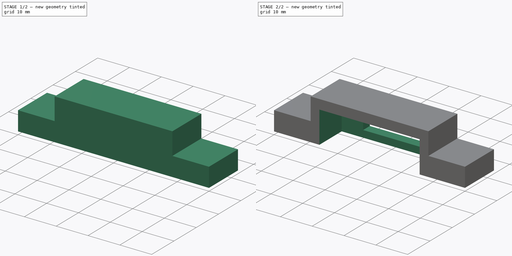
[diagram: build sequence overview — one tinted view per stage of 2, left to right]
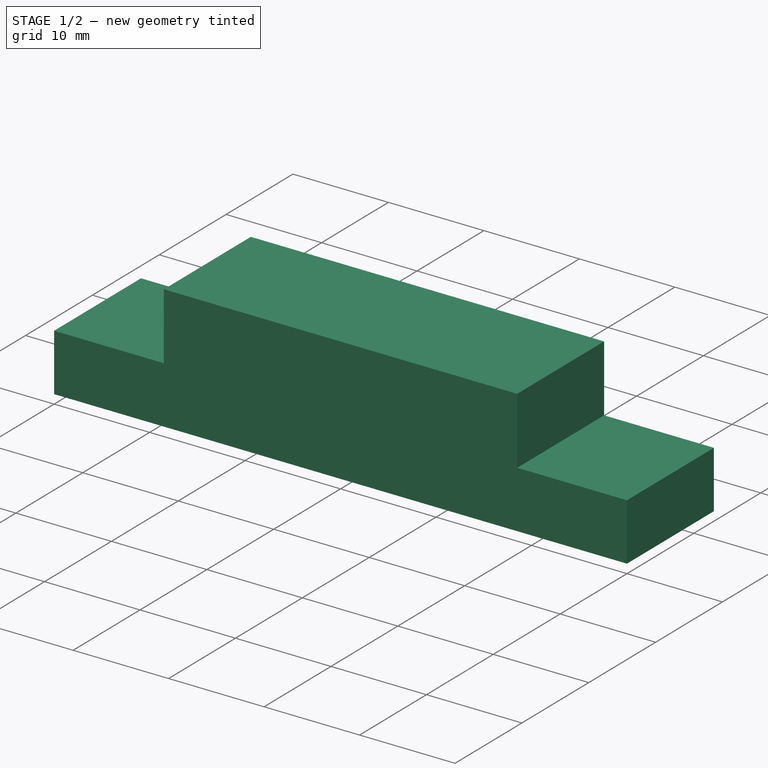
[diagram: stage 1 of 2 — iso view after this stage's code; geometry added in this stage tinted green]
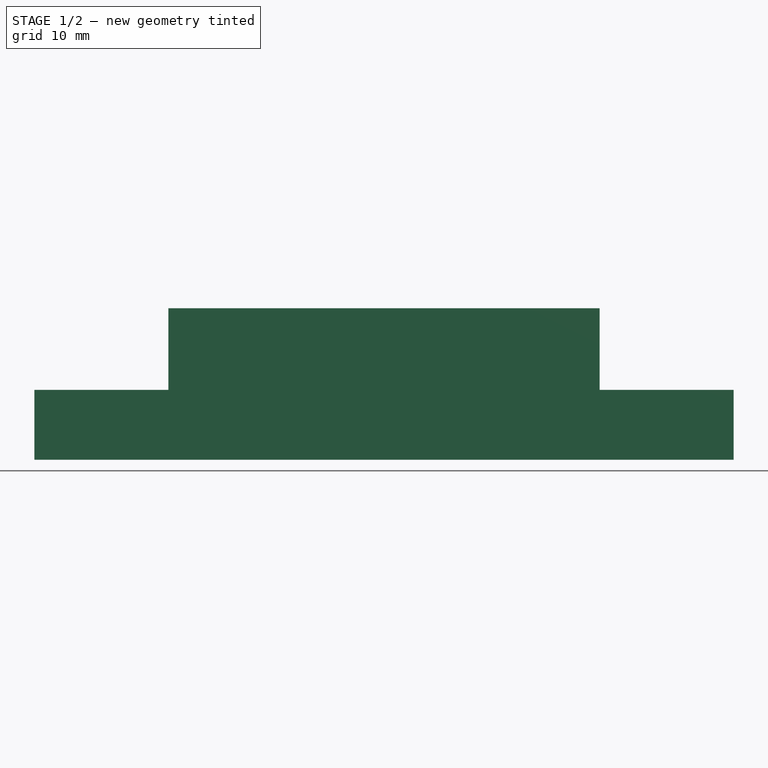
[diagram: stage 1 of 2 — front view after this stage's code; geometry added in this stage tinted green]
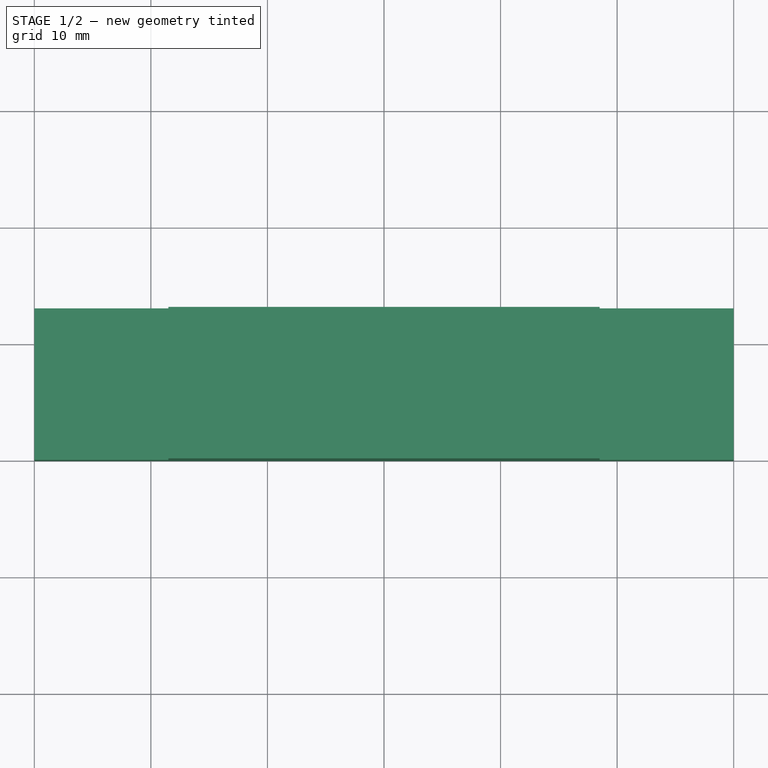
[diagram: stage 1 of 2 — top view after this stage's code; geometry added in this stage tinted green]
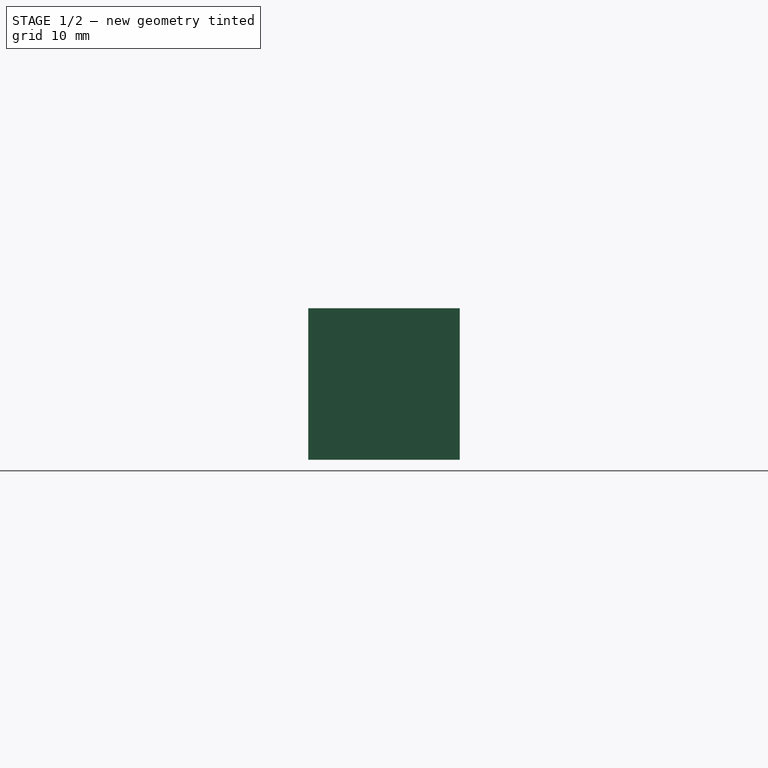
[diagram: stage 1 of 2 — right view after this stage's code; geometry added in this stage tinted green]
FCSTD DOCUMENT  (FreeCAD 0.19R)
Label: USBHubClip
License: All rights reserved
LicenseURL: http://en.wikipedia.org/wiki/All_rights_reserved
objects: Sketcher::SketchObject×4, PartDesign::Pocket×3, PartDesign::Pad×1, PartDesign::Body×1
note: 13 computed .brp shape members not serialized (recipe doc carries the construction recipe); baked Part::Feature solids carry a one-line shape summary decoded from their .brp

FEATURE [Sketcher::SketchObject] Sketch
  FullyConstrained = true
  MapMode = 5
  Support = -> [XY_Plane]
  sketch-geometry (4):
    g0: LineSegment StartX=-30 StartY=13 StartZ=0 EndX=30 EndY=13 EndZ=0
    g1: LineSegment StartX=30 StartY=13 StartZ=0 EndX=30 EndY=0 EndZ=0
    g2: LineSegment StartX=30 StartY=0 StartZ=0 EndX=-30 EndY=0 EndZ=0
    g3: LineSegment StartX=-30 StartY=0 StartZ=0 EndX=-30 EndY=13 EndZ=0
  constraints (11):
    c: Coincident(g0,g1)
    c: Coincident(g1,g2)
    c: Coincident(g2,g3)
    c: Coincident(g3,g0)
    c: Horizontal(g0)
    c: Vertical(g1)
    c: Vertical(g3)
    c: PointOnObject(g1,g-1)
    c: Distance(g1,g2) = 60
    c: Distance(g1) = 13
    c: Symmetric(g1,g2,g-2)
FEATURE [PartDesign::Pad] Pad
  Direction = (1,1,1)
  Length = 13
  Length2 = 100
  Profile = -> Sketch
  Type = 0
FEATURE [Sketcher::SketchObject] Sketch001
  FullyConstrained = false
  MapMode = 5
  Placement = pos=(0,0,0) rot=(1,0,0;1.5708rad)
  Support = -> [Pad]
  sketch-geometry (8):
    g0: LineSegment StartX=-33.2089 StartY=6 StartZ=0 EndX=-18.5 EndY=6 EndZ=0
    g1: LineSegment StartX=-18.5 StartY=6 StartZ=0 EndX=-18.5 EndY=16.3421 EndZ=0
    g2: LineSegment StartX=-18.5 StartY=16.3421 StartZ=0 EndX=18.5 EndY=16.3421 EndZ=0
    g3: LineSegment StartX=18.5 StartY=16.3421 StartZ=0 EndX=18.5 EndY=6 EndZ=0
    g4: LineSegment StartX=18.5 StartY=6 StartZ=0 EndX=35.7557 EndY=6 EndZ=0
    g5: LineSegment StartX=35.7557 StartY=6 StartZ=0 EndX=31.9234 EndY=22.0904 EndZ=0
    g6: LineSegment StartX=31.9234 StartY=22.0904 StartZ=0 EndX=-34.2304 EndY=22.0904 EndZ=0
    g7: LineSegment StartX=-34.2304 StartY=22.0904 StartZ=0 EndX=-33.2089 EndY=6 EndZ=0
  constraints (17):
    c: Horizontal(g0)
    c: Coincident(g0,g1)
    c: Vertical(g1)
    c: Coincident(g1,g2)
    c: Horizontal(g2)
    c: Coincident(g2,g3)
    c: Coincident(g3,g4)
    c: Horizontal(g4)
    c: Coincident(g4,g5)
    c: Coincident(g5,g6)
    c: Horizontal(g6)
    c: Coincident(g6,g7)
    c: Coincident(g7,g0)
    c: Vertical(g3)
    c: Symmetric(g3,g0,g-2)
    c: Distance(g3,g0) = 37
    c: DistanceY(g3) = 6
FEATURE [PartDesign::Pocket] Pocket
  BaseFeature = -> Pad
  Length = 16
  Length2 = 100
  Profile = -> Sketch001
  Type = 0
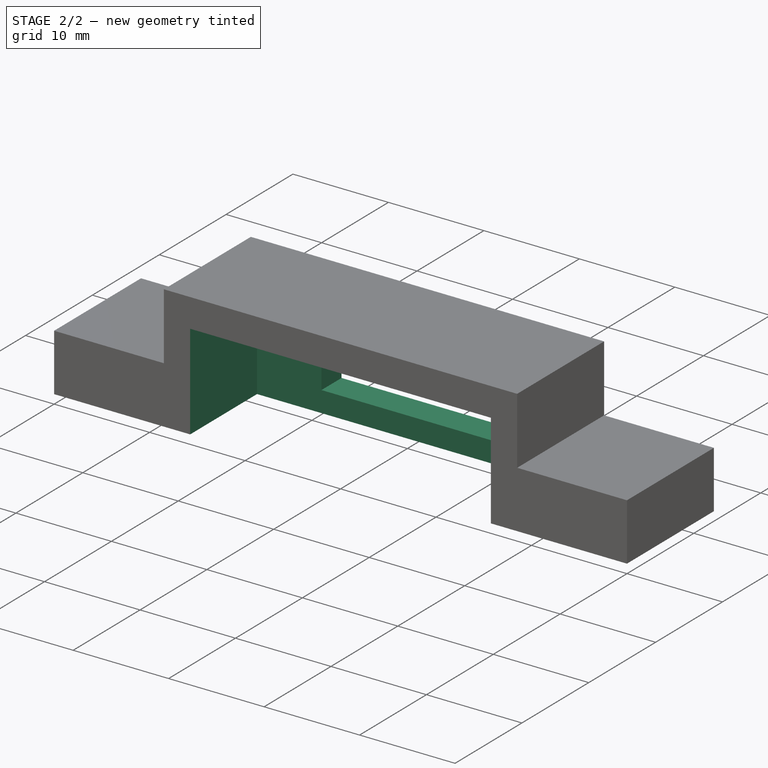
[diagram: stage 2 of 2 — iso view after this stage's code; geometry added in this stage tinted green]
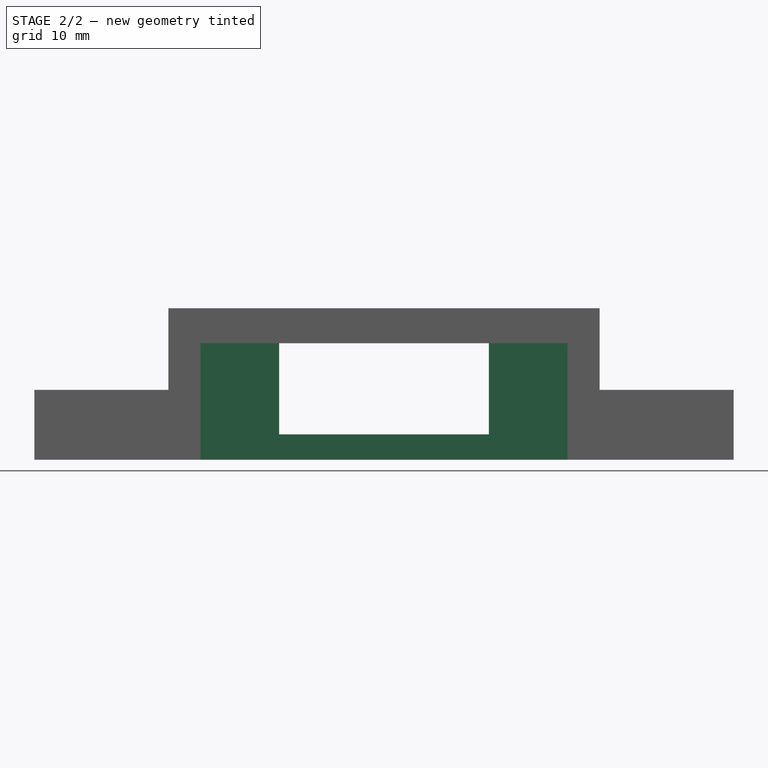
[diagram: stage 2 of 2 — front view after this stage's code; geometry added in this stage tinted green]
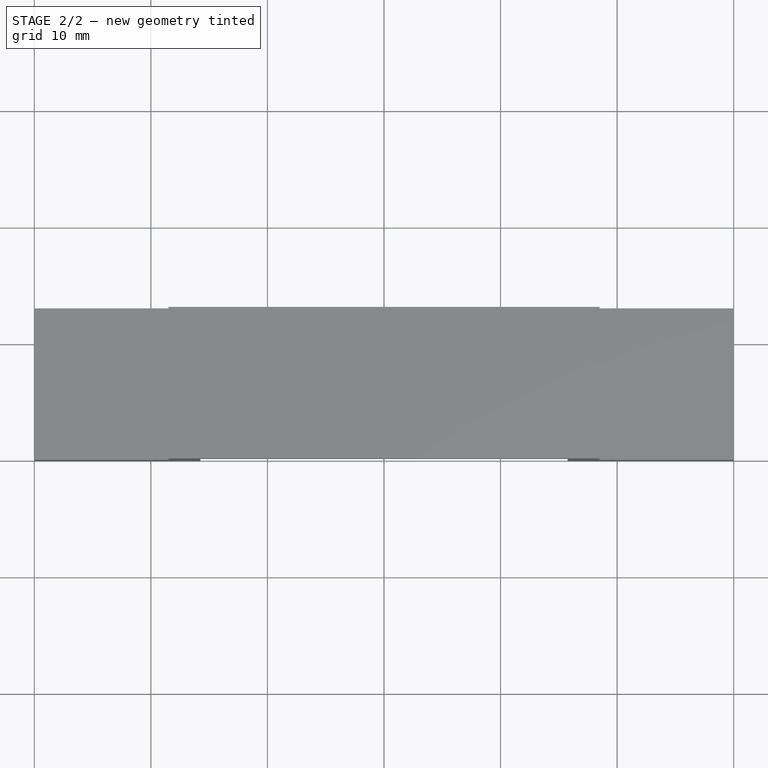
[diagram: stage 2 of 2 — top view after this stage's code; geometry added in this stage tinted green]
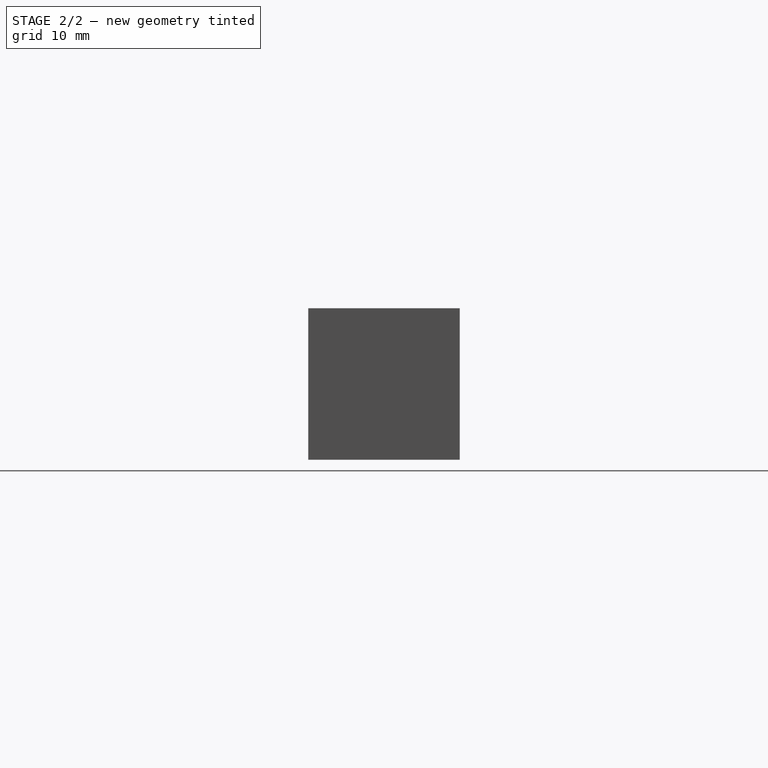
[diagram: stage 2 of 2 — right view after this stage's code; geometry added in this stage tinted green]
FEATURE [Sketcher::SketchObject] Sketch002
  FullyConstrained = false
  MapMode = 5
  Placement = pos=(0,0,0) rot=(1,0,0;1.5708rad)
  Support = -> [Pocket]
  sketch-geometry (4):
    g0: LineSegment StartX=-15.75 StartY=10 StartZ=0 EndX=15.75 EndY=10 EndZ=0
    g1: LineSegment StartX=15.75 StartY=10 StartZ=0 EndX=15.75 EndY=-8.69256 EndZ=0
    g2: LineSegment StartX=15.75 StartY=-8.69256 StartZ=0 EndX=-15.75 EndY=-8.69256 EndZ=0
    g3: LineSegment StartX=-15.75 StartY=-8.69256 StartZ=0 EndX=-15.75 EndY=10 EndZ=0
  constraints (10):
    c: Coincident(g0,g1)
    c: Coincident(g1,g2)
    c: Coincident(g2,g3)
    c: Coincident(g3,g0)
    c: Horizontal(g2)
    c: Vertical(g1)
    c: Vertical(g3)
    c: Symmetric(g0,g0,g-2)
    c: DistanceY(g0) = 10
    c: Distance(g0) = 31.5
FEATURE [PartDesign::Pocket] Pocket001
  BaseFeature = -> Pocket
  Length = 10
  Length2 = 100
  Profile = -> Sketch002
  Type = 0
FEATURE [Sketcher::SketchObject] Sketch003
  FullyConstrained = false
  MapMode = 5
  Placement = pos=(0,10,-2.2e-15) rot=(1,0,0;1.5708rad)
  Support = -> [Pocket001]
  sketch-geometry (4):
    g0: LineSegment StartX=-9 StartY=10.1833 StartZ=0 EndX=9 EndY=10.1833 EndZ=0
    g1: LineSegment StartX=9 StartY=10.1833 StartZ=0 EndX=9 EndY=2.18333 EndZ=0
    g2: LineSegment StartX=9 StartY=2.18333 StartZ=0 EndX=-9 EndY=2.18333 EndZ=0
    g3: LineSegment StartX=-9 StartY=2.18333 StartZ=0 EndX=-9 EndY=10.1833 EndZ=0
  constraints (10):
    c: Coincident(g0,g1)
    c: Coincident(g1,g2)
    c: Coincident(g2,g3)
    c: Coincident(g3,g0)
    c: Horizontal(g0)
    c: Vertical(g1)
    c: Vertical(g3)
    c: Distance(g0) = 18
    c: Distance(g1) = 8
    c: Symmetric(g1,g2,g-2)
FEATURE [PartDesign::Pocket] Pocket002
  BaseFeature = -> Pocket001
  Length = 5
  Length2 = 100
  Profile = -> Sketch003
  Type = 0
FEATURE [PartDesign::Body] Body
  Group = -> [Sketch,Pad,Sketch001,Sketch002,Sketch003,Pocket,Pocket001,Pocket002]
  Origin = -> Origin
  Tip = -> Pocket002
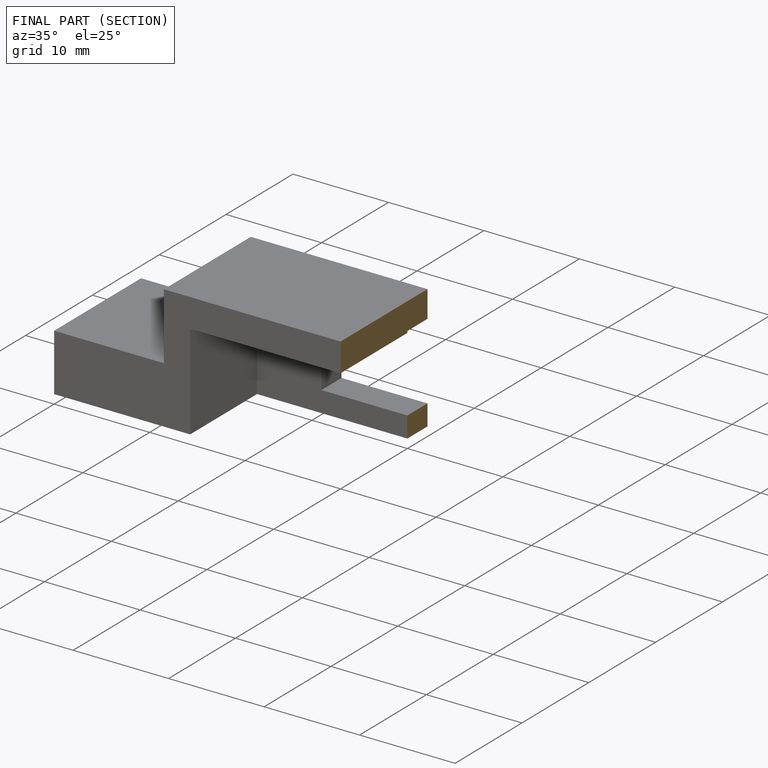
[diagram: finished part — half-section view (interior)]
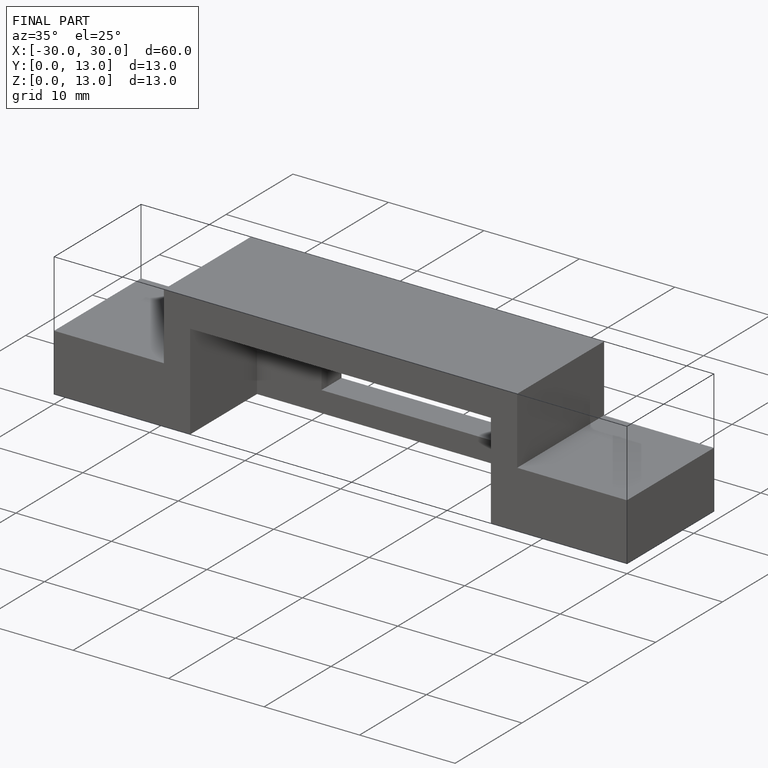
[diagram: finished part — iso view with bounding-box wireframe]
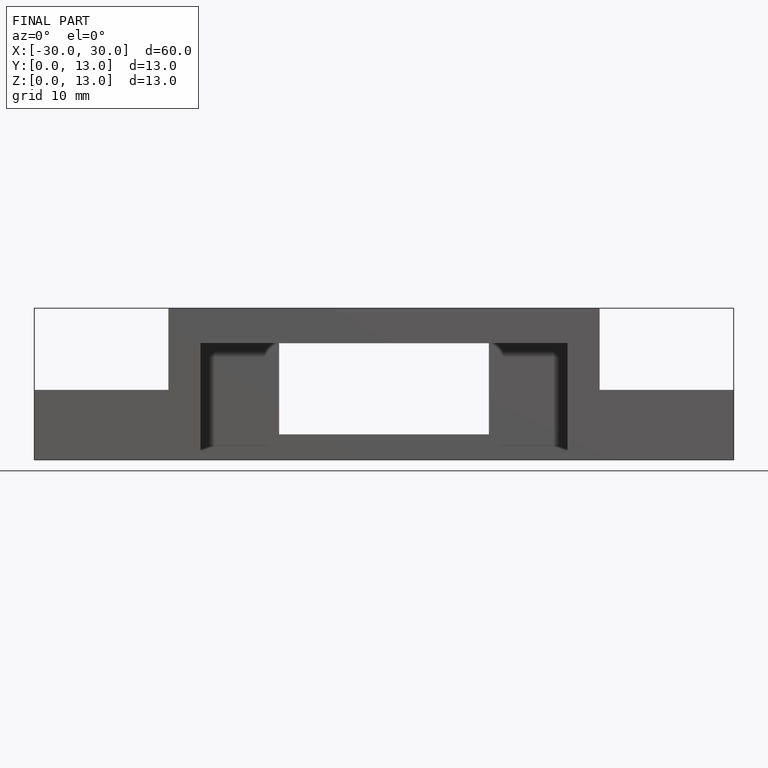
[diagram: finished part — front view with bounding-box wireframe]
